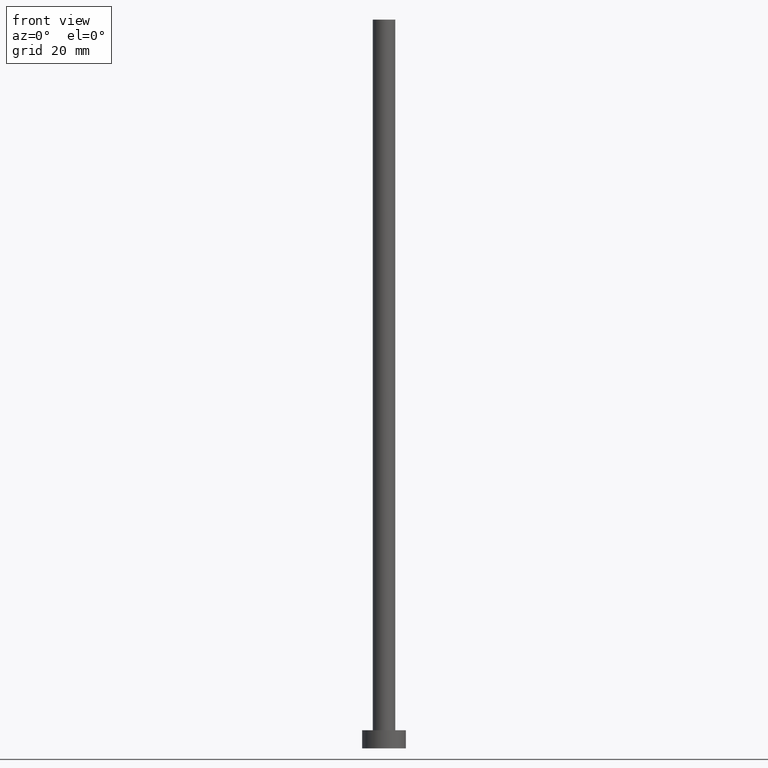
[diagram: clean part render]
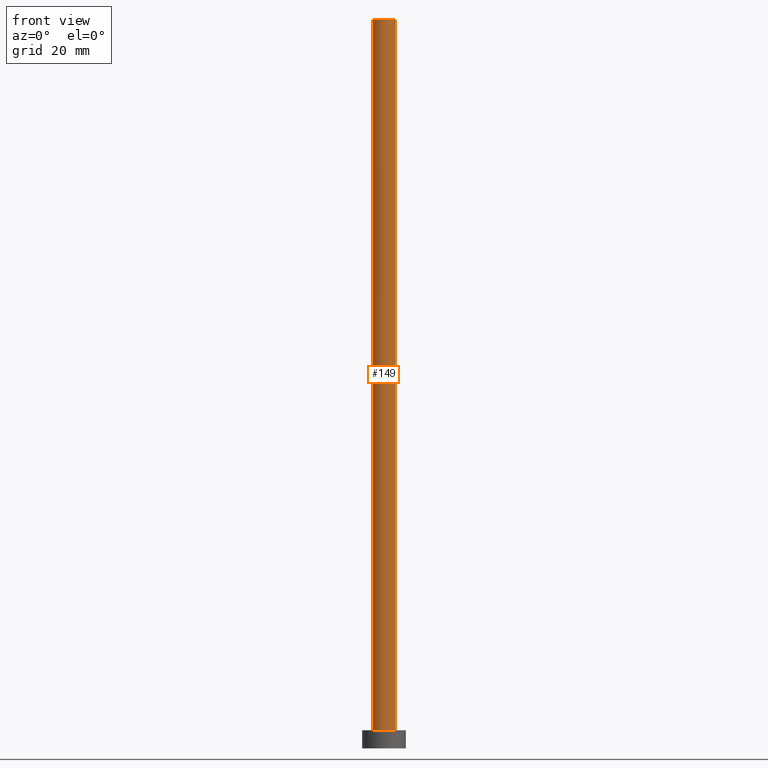
[diagram: same view with one face highlighted and labeled with its STEP entity id]
A machine part, front view. The second image highlights one B-rep face of the part: STEP entity #149.
In plain terms, the highlighted cylindrical surface (edge-blend (fillet) strip) has radius 3.1 mm, axis along (-0, -0, -1).
Its self-contained STEP definition (entity closure, byte-faithful):
#2 = EDGE_CURVE ( 'NONE', #82, #164, #57, .T. ) ;
#13 = CIRCLE ( 'NONE', #221, 3.100000000000000089 ) ;
#30 = DIRECTION ( 'NONE',  ( -0.000000000000000000, -0.000000000000000000, -1.000000000000000000 ) ) ;
#57 = LINE ( 'NONE', #118, #175 ) ;
#59 = ORIENTED_EDGE ( 'NONE', *, *, #194, .T. ) ;
#66 = CARTESIAN_POINT ( 'NONE',  ( 0.000000000000000000, 0.000000000000000000, 200.0000000000000000 ) ) ;
#71 = AXIS2_PLACEMENT_3D ( 'NONE', #66, #125, #151 ) ;
#82 = VERTEX_POINT ( 'NONE', #246 ) ;
#88 = CYLINDRICAL_SURFACE ( 'NONE', #121, 3.100000000000000089 ) ;
#92 = LINE ( 'NONE', #226, #95 ) ;
#95 = VECTOR ( 'NONE', #128, 1000.000000000000000 ) ;
#96 = EDGE_LOOP ( 'NONE', ( #186, #202, #143, #59 ) ) ;
#101 = VERTEX_POINT ( 'NONE', #129 ) ;
#108 = DIRECTION ( 'NONE',  ( 0.000000000000000000, 0.000000000000000000, 1.000000000000000000 ) ) ;
#118 = CARTESIAN_POINT ( 'NONE',  ( -3.100000000000000089, 0.000000000000000000, 200.0000000000000000 ) ) ;
#121 = AXIS2_PLACEMENT_3D ( 'NONE', #169, #30, #173 ) ;
#125 = DIRECTION ( 'NONE',  ( 0.000000000000000000, 0.000000000000000000, 1.000000000000000000 ) ) ;
#128 = DIRECTION ( 'NONE',  ( -0.000000000000000000, -0.000000000000000000, -1.000000000000000000 ) ) ;
#129 = CARTESIAN_POINT ( 'NONE',  ( 3.100000000000000089, 3.796405077356794918E-16, 200.0000000000000000 ) ) ;
#143 = ORIENTED_EDGE ( 'NONE', *, *, #2, .T. ) ;
#146 = FACE_OUTER_BOUND ( 'NONE', #96, .T. ) ;
#149 = ADVANCED_FACE ( 'NONE', ( #146 ), #88, .T. ) ;
#151 = DIRECTION ( 'NONE',  ( 1.000000000000000000, 0.000000000000000000, 0.000000000000000000 ) ) ;
#160 = EDGE_CURVE ( 'NONE', #82, #101, #177, .T. ) ;
#164 = VERTEX_POINT ( 'NONE', #193 ) ;
#169 = CARTESIAN_POINT ( 'NONE',  ( 0.000000000000000000, 0.000000000000000000, 200.0000000000000000 ) ) ;
#171 = CARTESIAN_POINT ( 'NONE',  ( 3.100000000000000089, 3.796405077356794918E-16, 5.000000000000000000 ) ) ;
#173 = DIRECTION ( 'NONE',  ( -1.000000000000000000, 0.000000000000000000, 0.000000000000000000 ) ) ;
#175 = VECTOR ( 'NONE', #219, 1000.000000000000000 ) ;
#177 = CIRCLE ( 'NONE', #71, 3.100000000000000089 ) ;
#186 = ORIENTED_EDGE ( 'NONE', *, *, #254, .F. ) ;
#193 = CARTESIAN_POINT ( 'NONE',  ( -3.100000000000000089, 0.000000000000000000, 5.000000000000000000 ) ) ;
#194 = EDGE_CURVE ( 'NONE', #164, #216, #13, .T. ) ;
#202 = ORIENTED_EDGE ( 'NONE', *, *, #160, .F. ) ;
#216 = VERTEX_POINT ( 'NONE', #171 ) ;
#219 = DIRECTION ( 'NONE',  ( -0.000000000000000000, -0.000000000000000000, -1.000000000000000000 ) ) ;
#221 = AXIS2_PLACEMENT_3D ( 'NONE', #252, #108, #229 ) ;
#226 = CARTESIAN_POINT ( 'NONE',  ( 3.100000000000000089, 3.796405077356794918E-16, 200.0000000000000000 ) ) ;
#229 = DIRECTION ( 'NONE',  ( 1.000000000000000000, 0.000000000000000000, 0.000000000000000000 ) ) ;
#246 = CARTESIAN_POINT ( 'NONE',  ( -3.100000000000000089, 0.000000000000000000, 200.0000000000000000 ) ) ;
#252 = CARTESIAN_POINT ( 'NONE',  ( 0.000000000000000000, 0.000000000000000000, 5.000000000000000000 ) ) ;
#254 = EDGE_CURVE ( 'NONE', #101, #216, #92, .T. ) ;